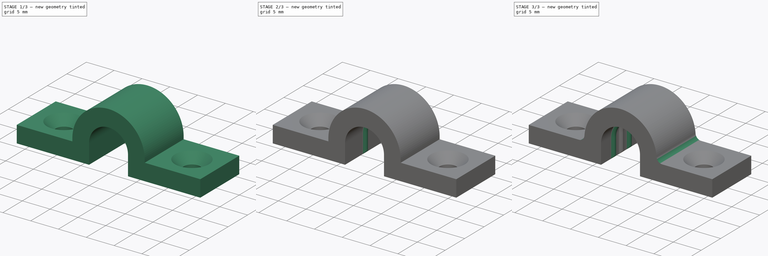
[diagram: build sequence overview — one tinted view per stage of 3, left to right]
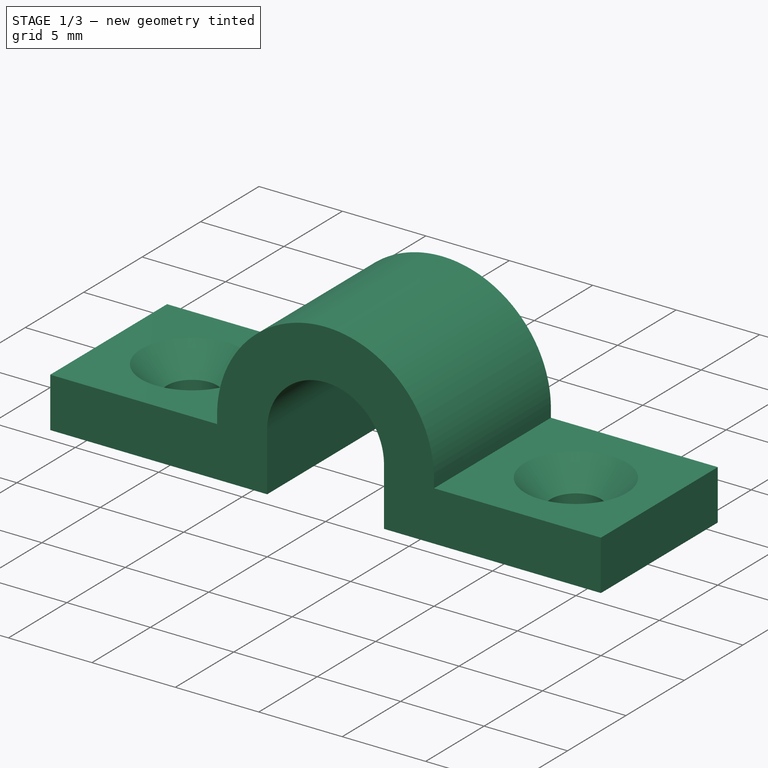
[diagram: stage 1 of 3 — iso view after this stage's code; geometry added in this stage tinted green]
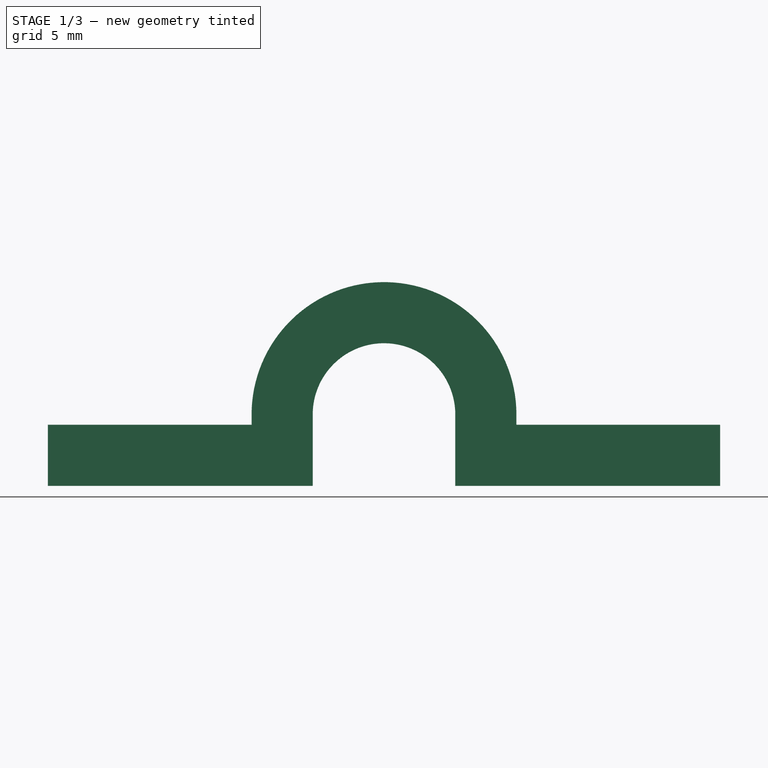
[diagram: stage 1 of 3 — front view after this stage's code; geometry added in this stage tinted green]
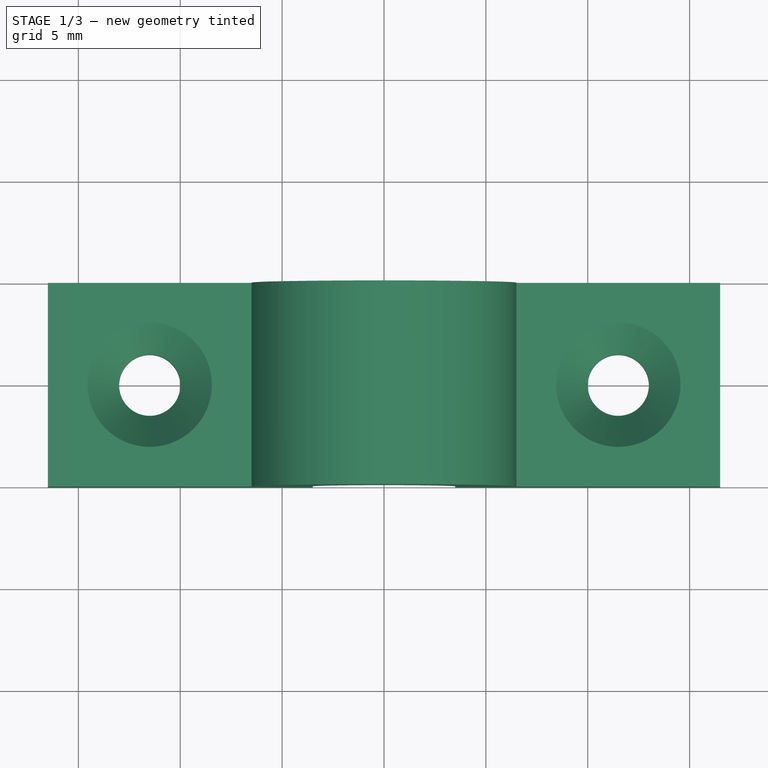
[diagram: stage 1 of 3 — top view after this stage's code; geometry added in this stage tinted green]
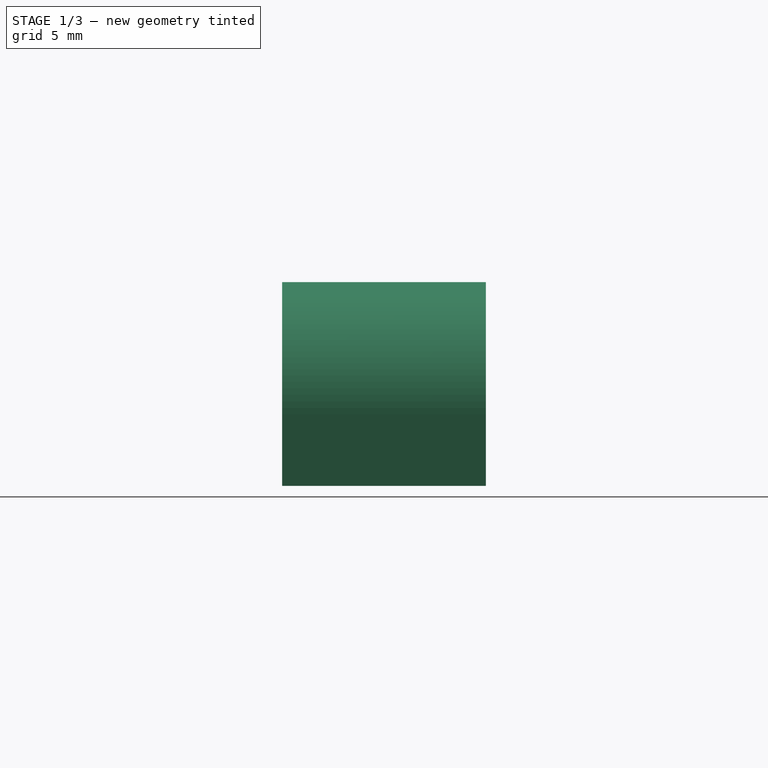
[diagram: stage 1 of 3 — right view after this stage's code; geometry added in this stage tinted green]
FCSTD DOCUMENT  (FreeCAD 0.20R29177 (Git))
Label: Cable clip
License: All rights reserved
LicenseURL: http://en.wikipedia.org/wiki/All_rights_reserved
objects: Sketcher::SketchObject×3, PartDesign::Pad×2, PartDesign::Fillet×2, PartDesign::LinearPattern×2, PartDesign::Hole×1, PartDesign::MultiTransform×1, PartDesign::Body×1
note: 17 computed .brp shape members not serialized (recipe doc carries the construction recipe); baked Part::Feature solids carry a one-line shape summary decoded from their .brp

FEATURE [Sketcher::SketchObject] Sketch
  FullyConstrained = true
  MapMode = 5
  Placement = pos=(0,0,0) rot=(1,0,0;1.5708rad)
  Support = -> [XZ_Plane]
  sketch-geometry (14):
    g0: LineSegment StartX=-16.5 StartY=-3 StartZ=0 EndX=-3.5 EndY=-3 EndZ=0
    g1: LineSegment StartX=-3.5 StartY=-3 StartZ=0 EndX=-3.5 EndY=0.5 EndZ=0
    g2: ArcOfCircle CenterX=0 CenterY=0.5 CenterZ=0 NormalX=0 NormalY=0 NormalZ=1 AngleXU=0 Radius=3.5 StartAngle=1e-16 EndAngle=3.14159
    g3: LineSegment StartX=3.5 StartY=0.5 StartZ=0 EndX=3.5 EndY=-3 EndZ=0
    g4: LineSegment StartX=3.5 StartY=-3 StartZ=0 EndX=16.5 EndY=-3 EndZ=0
    g5: LineSegment StartX=16.5 StartY=-3 StartZ=0 EndX=16.5 EndY=0 EndZ=0
    g6: LineSegment StartX=16.5 StartY=0 StartZ=0 EndX=6.5 EndY=0 EndZ=0
    g7: LineSegment StartX=6.5 StartY=0 StartZ=0 EndX=6.5 EndY=0.5 EndZ=0
    g8: ArcOfCircle CenterX=0 CenterY=0.5 CenterZ=0 NormalX=0 NormalY=0 NormalZ=1 AngleXU=0 Radius=6.5 StartAngle=0 EndAngle=3.14159
    g9: LineSegment StartX=-6.5 StartY=0.5 StartZ=0 EndX=-6.5 EndY=1.94638e-11 EndZ=0
    g10: LineSegment StartX=-6.5 StartY=1.94638e-11 StartZ=0 EndX=-16.5 EndY=1.94638e-11 EndZ=0
    g11: LineSegment StartX=-16.5 StartY=1.94638e-11 StartZ=0 EndX=-16.5 EndY=-3 EndZ=0
    g12: LineSegment StartX=6.5 StartY=0 StartZ=0 EndX=3.5 EndY=0 EndZ=0
    g13: Circle CenterX=0 CenterY=0.5 CenterZ=0 NormalX=0 NormalY=0 NormalZ=1 AngleXU=0 Radius=3.5
  constraints (39):
    c: Coincident(g0,g1)
    c: Vertical(g1)
    c: Tangent(g1,g2) = 1.5708
    c: Tangent(g2,g3) = 1.5708
    c: Coincident(g3,g4)
    c: Horizontal(g4)
    c: Coincident(g4,g5)
    c: Vertical(g5)
    c: Coincident(g5,g6)
    c: Horizontal(g6)
    c: Coincident(g6,g7)
    c: Vertical(g7)
    c: Tangent(g7,g8) = -1.5708
    c: Tangent(g8,g9) = -1.5708
    c: Coincident(g9,g10)
    c: Horizontal(g10)
    c: Coincident(g10,g11)
    c: Coincident(g11,g0)
    c: PointOnObject(g8,g-2)
    c: Vertical(g9)
    c: Vertical(g3)
    c: Vertical(g11)
    c: PointOnObject(g2,g-2)
    c: Equal(g0,g4)
    c: Equal(g11,g5)
    c: Horizontal(g2,g7)
    c: DistanceY(g5,g5) = 3
    c: Coincident(g12,g6)
    c: PointOnObject(g12,g3)
    c: Horizontal(g12)
    c: Equal(g12,g5)
    c: DistanceX(g6,g6) = 10
    c: Diameter(g2) = 7
    c: Coincident(g13,g2)
    c: PointOnObject(g2,g13)
    c: Horizontal(g0,g3)
    c: Tangent(g13,g4)
    c: Horizontal(g0)
    c: PointOnObject(g6,g-1)
FEATURE [PartDesign::Pad] Pad
  Direction = (0,-1,2e-16)
  Length = 10
  Length2 = 10
  Midplane = true
  Placement = pos=(0,0,0) rot=(1,0,0;1.5708rad)
  Profile = -> Sketch
  ReferenceAxis = -> Sketch [N_Axis]
  Type = 0
FEATURE [Sketcher::SketchObject] Sketch001
  ExternalGeometry = -> [Pad]
  FullyConstrained = false
  MapMode = 5
  Support = -> [XY_Plane]
  sketch-geometry (4):
    g0: Circle CenterX=-11.5 CenterY=0 CenterZ=0 NormalX=0 NormalY=0 NormalZ=1 AngleXU=0 Radius=3.58723
    g1: Circle CenterX=11.5 CenterY=0 CenterZ=0 NormalX=0 NormalY=0 NormalZ=1 AngleXU=0 Radius=3.29081
    g2: LineSegment StartX=-11.5 StartY=0 StartZ=0 EndX=-16.5 EndY=5 EndZ=0
    g3: LineSegment StartX=-6.5 StartY=5 StartZ=0 EndX=-11.5 EndY=0 EndZ=0
  constraints (7):
    c: Symmetric(g0,g1,g-2)
    c: PointOnObject(g0,g-1)
    c: Coincident(g2,g0)
    c: Coincident(g2,g-3)
    c: Coincident(g3,g-4)
    c: Coincident(g3,g0)
    c: Equal(g2,g3)
FEATURE [PartDesign::Hole] Hole
  BaseFeature = -> Pad
  CustomThreadClearance = 0
  Depth = 25
  DepthType = 0
  Diameter = 3
  DrillForDepth = false
  DrillPoint = 1
  DrillPointAngle = 118
  HoleCutCountersinkAngle = 90
  HoleCutCustomValues = false
  HoleCutDepth = 0
  HoleCutDiameter = 6.1
  HoleCutType = 2
  ModelThread = false
  Placement = pos=(0,0,0) rot=(1,0,0;1.5708rad)
  Profile = -> Sketch001
  Tapered = false
  TaperedAngle = 90
  ThreadClass = 0
  ThreadDepth = 23.5
  ThreadDepthType = 0
  ThreadDirection = 0
  ThreadFit = 0
  ThreadSize = 0
  ThreadType = 0
  Threaded = false
  UseCustomThreadClearance = false
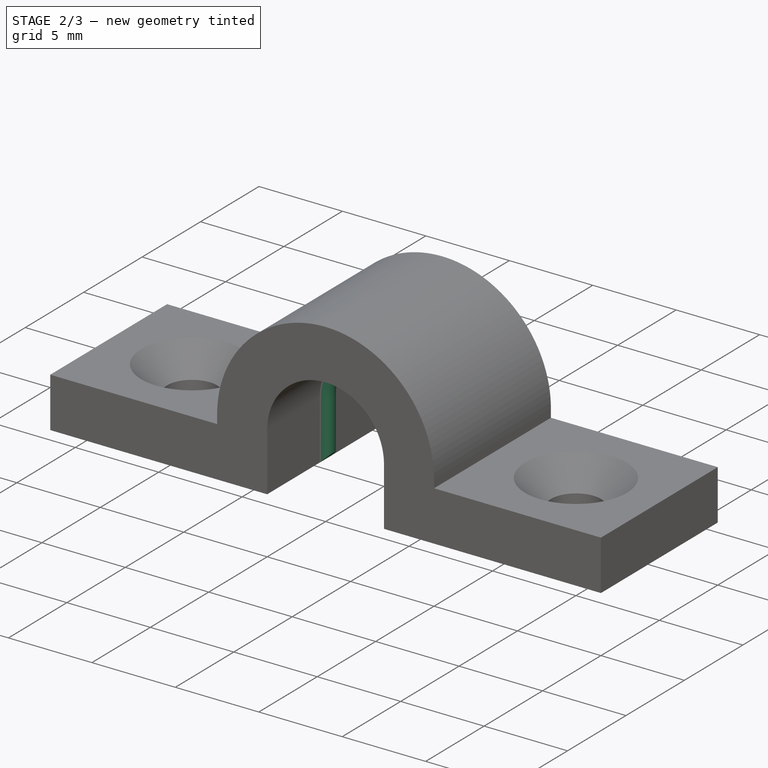
[diagram: stage 2 of 3 — iso view after this stage's code; geometry added in this stage tinted green]
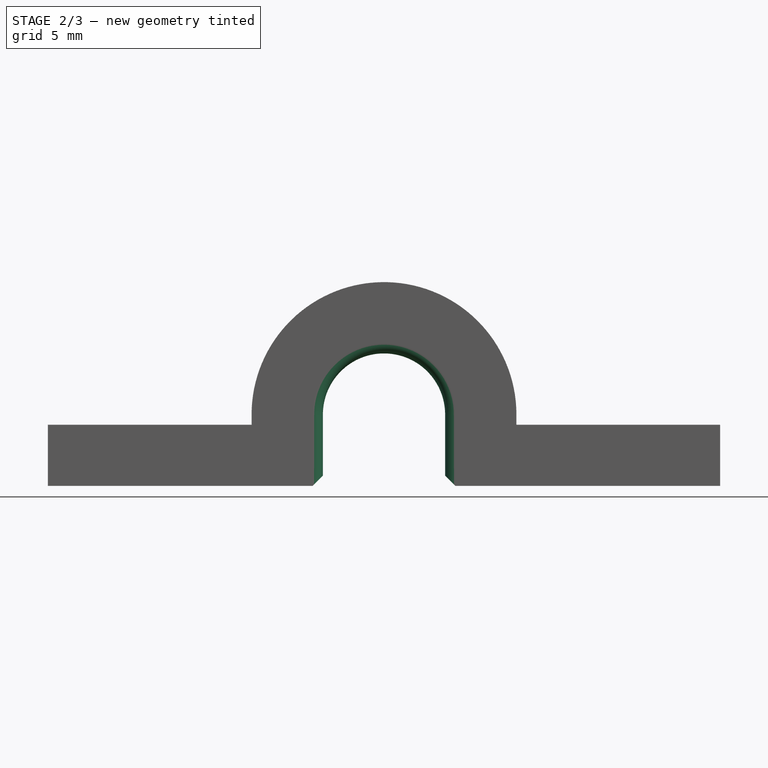
[diagram: stage 2 of 3 — front view after this stage's code; geometry added in this stage tinted green]
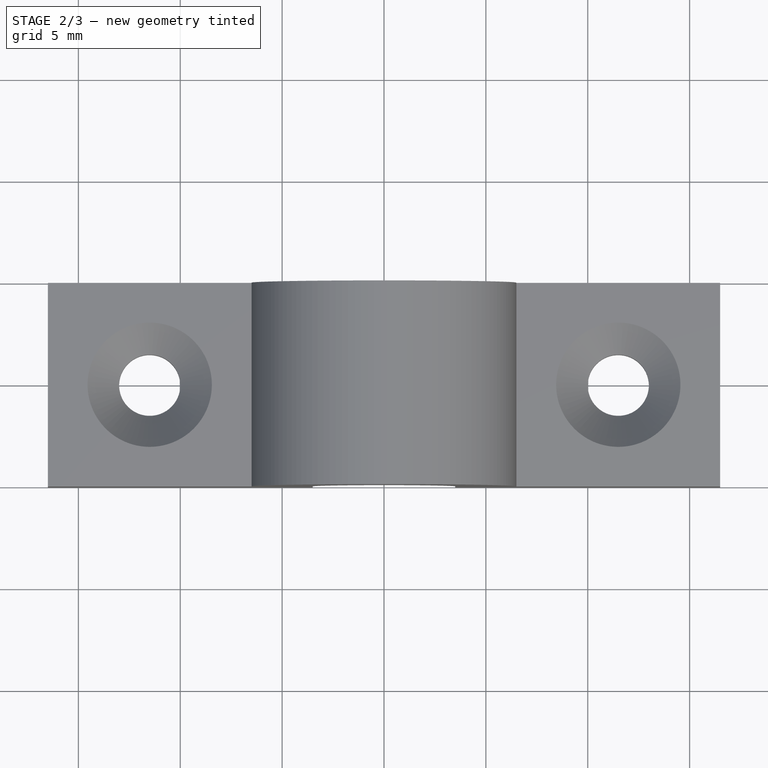
[diagram: stage 2 of 3 — top view after this stage's code; geometry added in this stage tinted green]
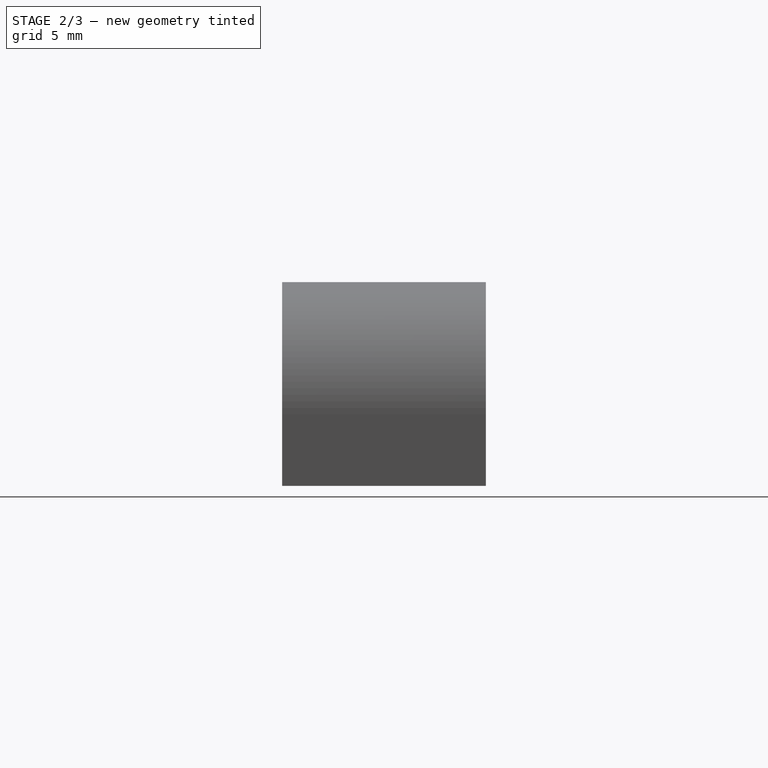
[diagram: stage 2 of 3 — right view after this stage's code; geometry added in this stage tinted green]
FEATURE [Sketcher::SketchObject] Sketch002
  ExternalGeometry = -> [Hole]
  FullyConstrained = true
  MapMode = 5
  Placement = pos=(0,0,0) rot=(1,0,0;1.5708rad)
  Support = -> [XZ_Plane]
  sketch-geometry (8):
    g0: LineSegment StartX=-3.5 StartY=0.5 StartZ=0 EndX=-3.5 EndY=-3 EndZ=0
    g1: LineSegment StartX=3.5 StartY=0.5 StartZ=0 EndX=3.5 EndY=-3 EndZ=0
    g2: ArcOfCircle CenterX=0 CenterY=0.5 CenterZ=0 NormalX=0 NormalY=0 NormalZ=1 AngleXU=0 Radius=3.5 StartAngle=0 EndAngle=3.14159
    g3: ArcOfCircle CenterX=0 CenterY=0.5 CenterZ=0 NormalX=0 NormalY=0 NormalZ=1 AngleXU=0 Radius=3 StartAngle=0 EndAngle=3.14159
    g4: LineSegment StartX=-3 StartY=0.5 StartZ=0 EndX=-3 EndY=-2.5 EndZ=0
    g5: LineSegment StartX=3 StartY=-2.5 StartZ=0 EndX=3 EndY=0.5 EndZ=0
    g6: LineSegment StartX=-3.5 StartY=-3 StartZ=0 EndX=-3 EndY=-2.5 EndZ=0
    g7: LineSegment StartX=3 StartY=-2.5 StartZ=0 EndX=3.5 EndY=-3 EndZ=0
  constraints (20):
    c: Coincident(g0,g-4)
    c: Coincident(g1,g-3)
    c: Vertical(g1)
    c: Horizontal(g0,g1)
    c: Horizontal(g0,g1)
    c: Coincident(g2,g-3)
    c: Coincident(g2,g0)
    c: Coincident(g2,g1)
    c: Tangent(g3,g4) = -1.5708
    c: Tangent(g5,g3) = -1.5708
    c: Coincident(g3,g2)
    c: Vertical(g4)
    c: Vertical(g5)
    c: DistanceX(g0,g4) = 0.5
    c: Coincident(g6,g0)
    c: Coincident(g4,g6)
    c: Coincident(g7,g5)
    c: Coincident(g1,g7)
    c: Horizontal(g4,g5)
    c: DistanceY(g6,g6) = 0.5
FEATURE [PartDesign::Pad] Pad001
  BaseFeature = -> Hole
  Direction = (0,-1,-2e-16)
  Length = 1
  Length2 = 10
  Midplane = true
  Placement = pos=(0,0,0) rot=(1,0,0;1.5708rad)
  Profile = -> Sketch002
  ReferenceAxis = -> Sketch002 [N_Axis]
  Type = 0
FEATURE [PartDesign::Fillet] Fillet
  Base = -> Pad001 [Edge59,Edge64]
  BaseFeature = -> Pad001
  Placement = pos=(0,0,0) rot=(1,0,0;1.5708rad)
  Radius = 0.49999
  SupportTransform = false
  UseAllEdges = false
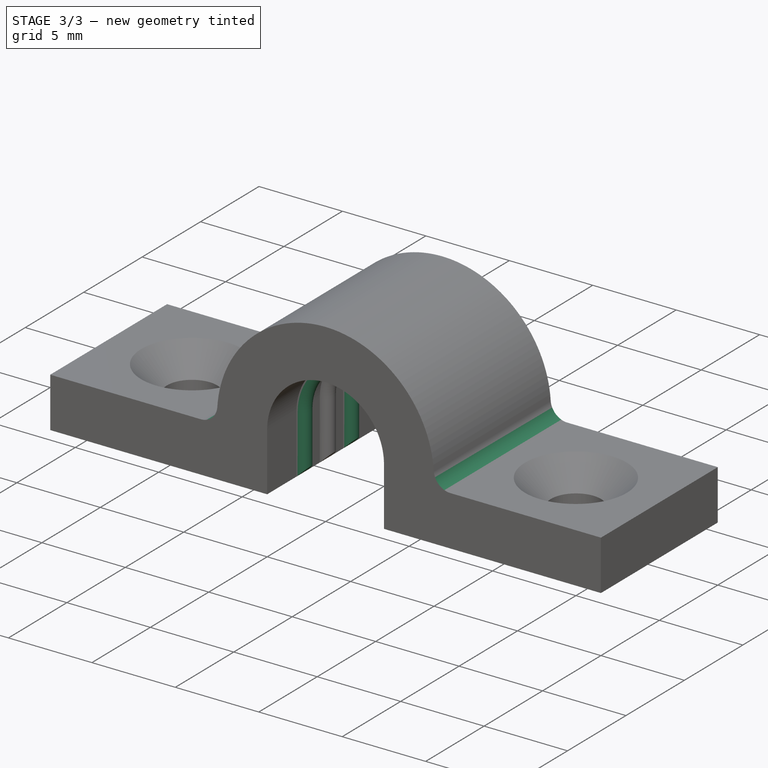
[diagram: stage 3 of 3 — iso view after this stage's code; geometry added in this stage tinted green]
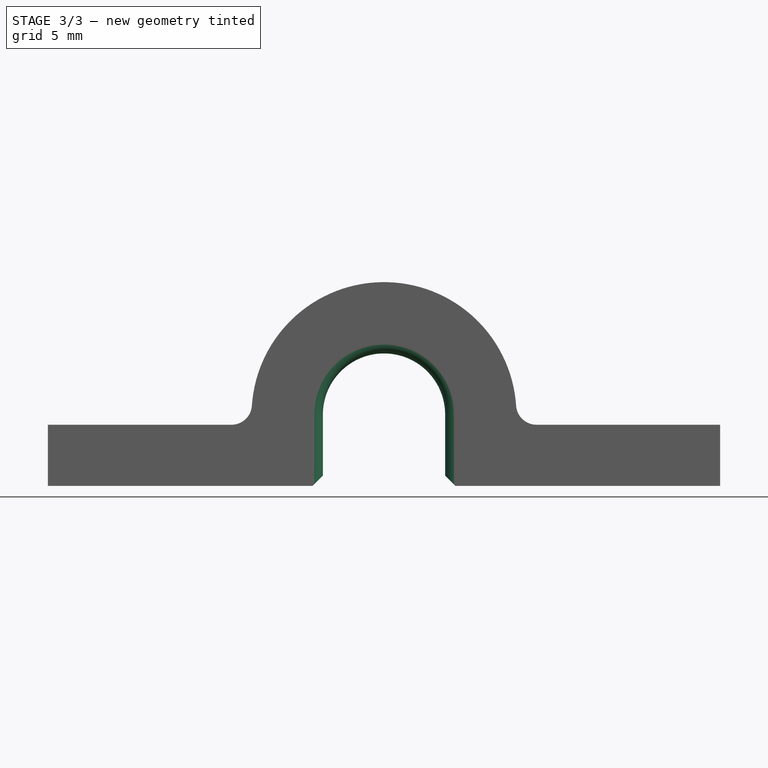
[diagram: stage 3 of 3 — front view after this stage's code; geometry added in this stage tinted green]
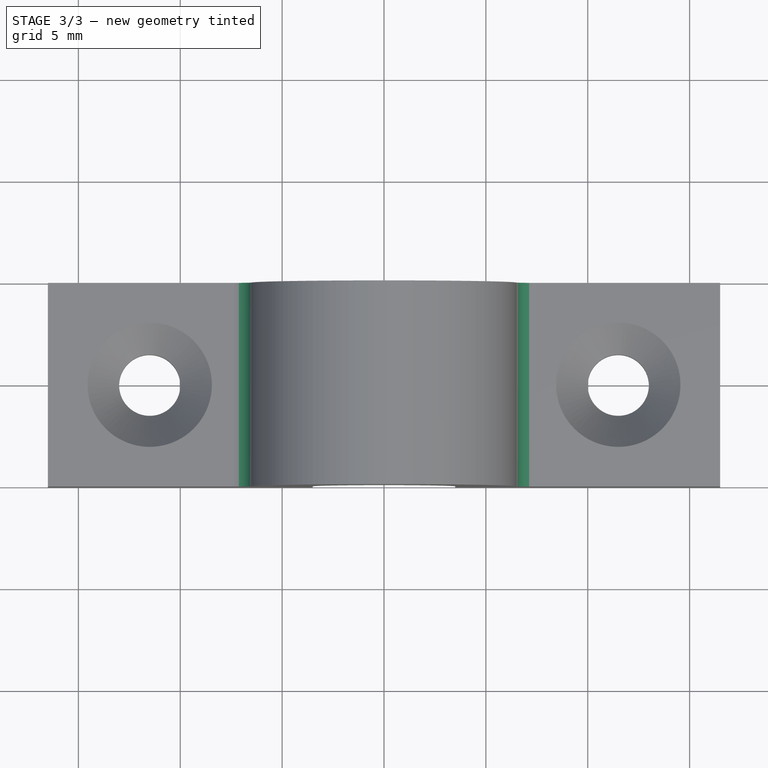
[diagram: stage 3 of 3 — top view after this stage's code; geometry added in this stage tinted green]
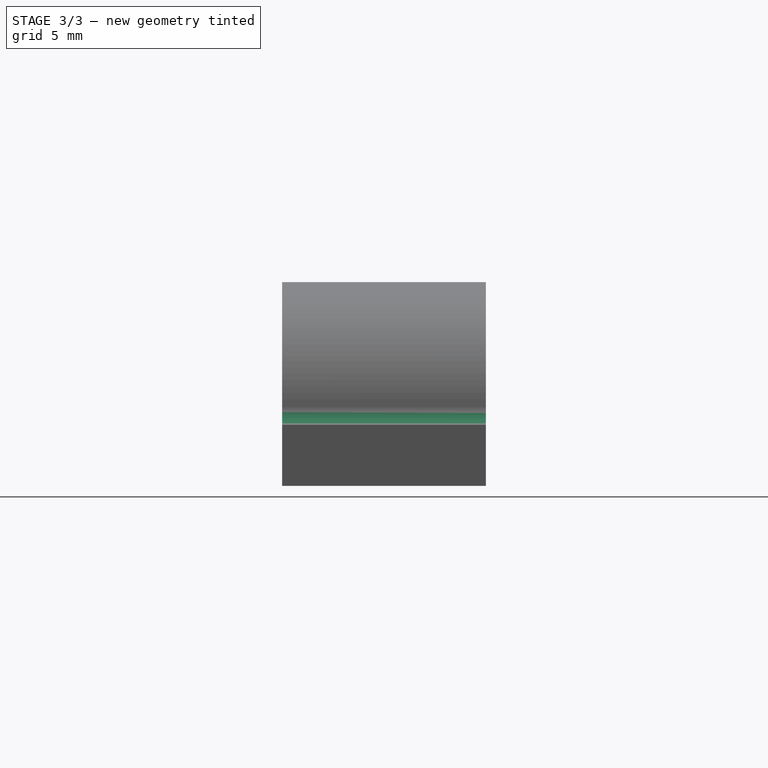
[diagram: stage 3 of 3 — right view after this stage's code; geometry added in this stage tinted green]
FEATURE [PartDesign::LinearPattern] LinearPattern
  Direction = -> Sketch002 [N_Axis]
  Length = 2
  Occurrences = 2
  Placement = pos=(0,0,0) rot=(1,0,0;1.5708rad)
FEATURE [PartDesign::LinearPattern] LinearPattern001
  Direction = -> Sketch002 [N_Axis]
  Length = 2
  Occurrences = 2
  Placement = pos=(0,0,0) rot=(1,0,0;1.5708rad)
  Reversed = true
FEATURE [PartDesign::MultiTransform] MultiTransform
  BaseFeature = -> Fillet
  Originals = -> [Pad001,Fillet]
  Placement = pos=(0,0,0) rot=(1,0,0;1.5708rad)
  Transformations = -> [LinearPattern,LinearPattern001]
FEATURE [PartDesign::Fillet] Fillet001
  Base = -> MultiTransform [Edge85,Edge98]
  BaseFeature = -> MultiTransform
  Placement = pos=(0,0,0) rot=(1,0,0;1.5708rad)
  Radius = 1
  SupportTransform = false
  UseAllEdges = false
FEATURE [PartDesign::Body] Body
  Group = -> [Sketch,Pad,Sketch001,Hole,Sketch002,Pad001,Fillet,MultiTransform,LinearPattern,LinearPattern001,Fillet001]
  Origin = -> Origin
  Tip = -> Fillet001
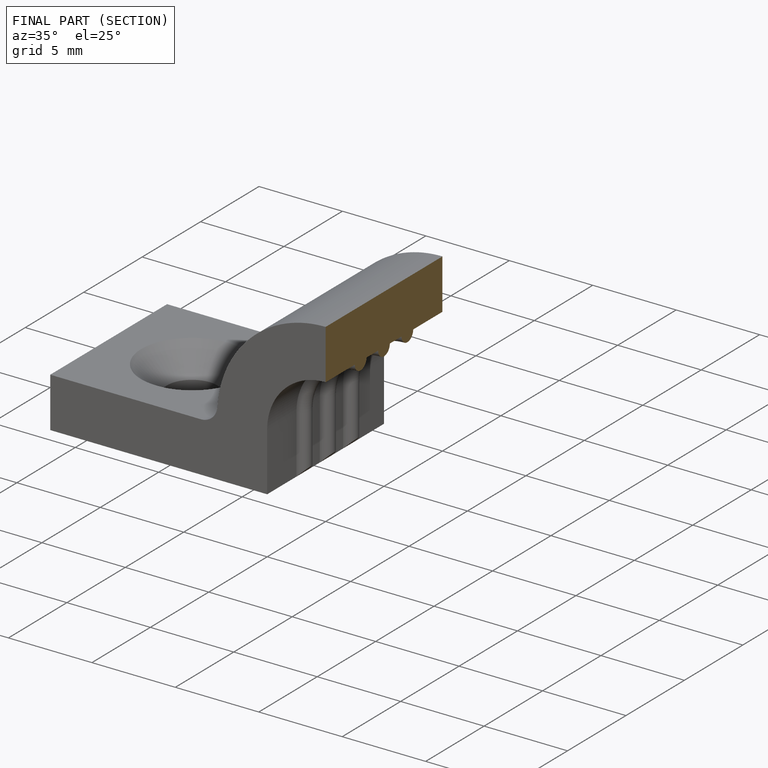
[diagram: finished part — half-section view (interior)]
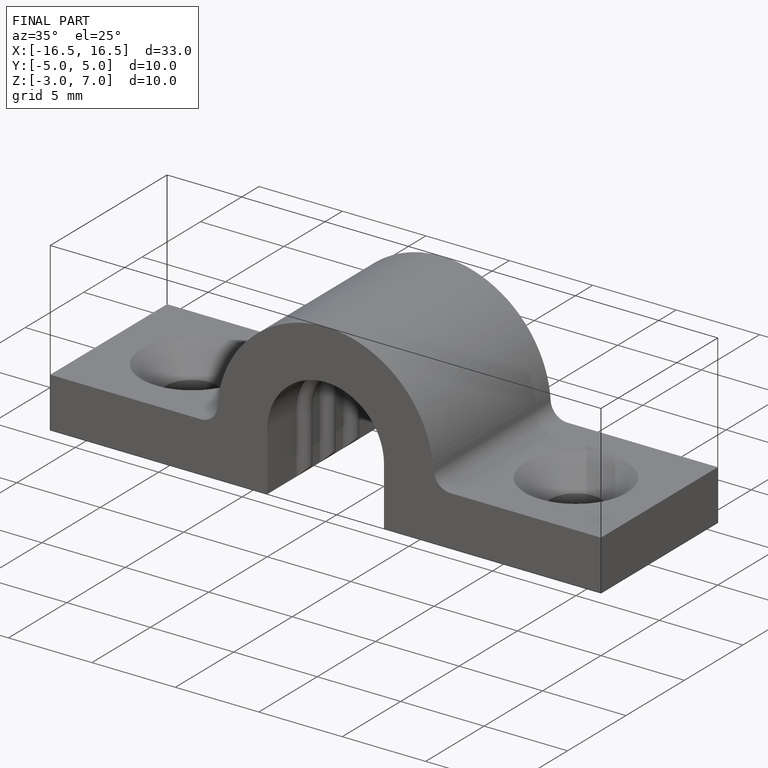
[diagram: finished part — iso view with bounding-box wireframe]
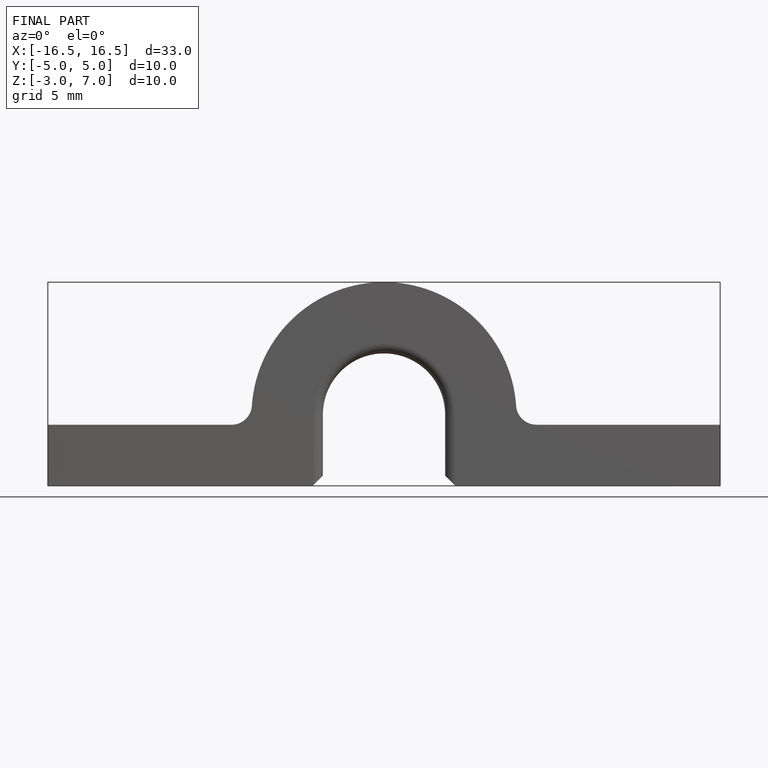
[diagram: finished part — front view with bounding-box wireframe]
